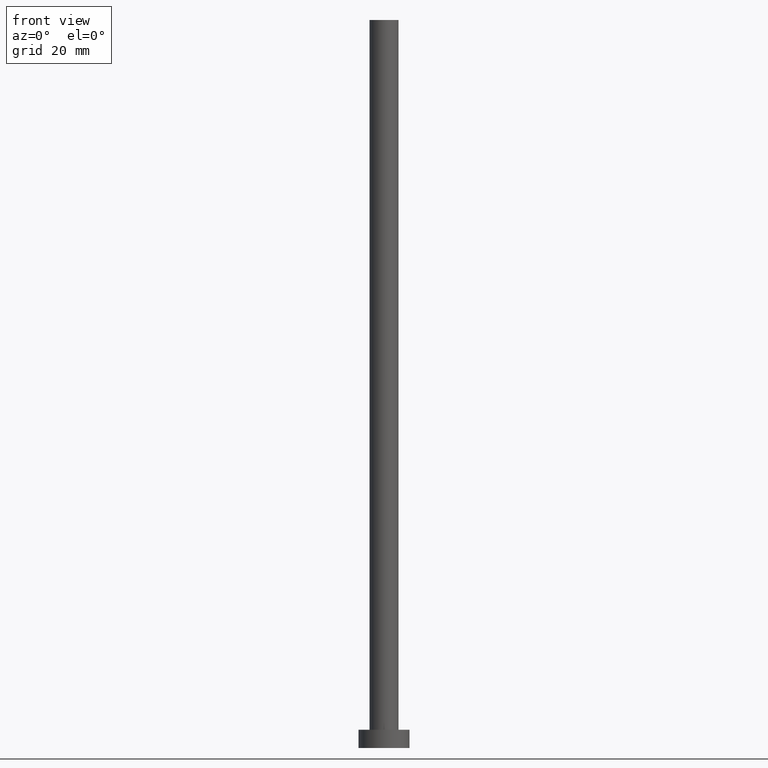
[diagram: clean part render]
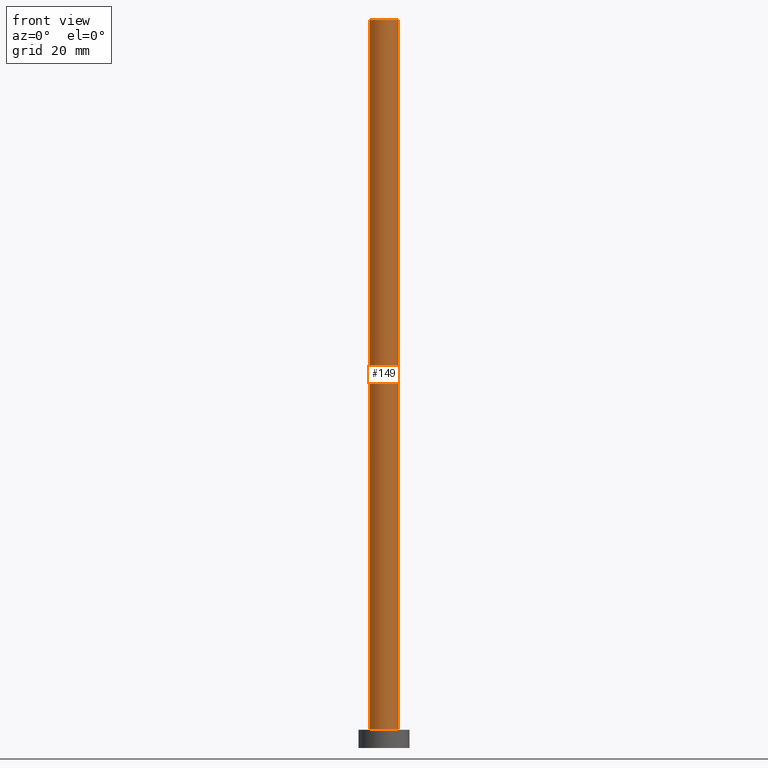
[diagram: same view with one face highlighted and labeled with its STEP entity id]
A machine part, front view. The second image highlights one B-rep face of the part: STEP entity #149.
In plain terms, the highlighted cylindrical surface (edge-blend (fillet) strip) has radius 4 mm, axis along (-0, -0, -1).
Its self-contained STEP definition (entity closure, byte-faithful):
#5 = CIRCLE ( 'NONE', #164, 4.000000000000000000 ) ;
#6 = CARTESIAN_POINT ( 'NONE',  ( 4.000000000000000000, 4.898587196589412829E-16, 5.000000000000000000 ) ) ;
#32 = EDGE_CURVE ( 'NONE', #165, #100, #215, .T. ) ;
#44 = DIRECTION ( 'NONE',  ( -0.000000000000000000, -0.000000000000000000, -1.000000000000000000 ) ) ;
#46 = CARTESIAN_POINT ( 'NONE',  ( 4.000000000000000000, 4.898587196589412829E-16, 200.0000000000000000 ) ) ;
#53 = CARTESIAN_POINT ( 'NONE',  ( 0.000000000000000000, 0.000000000000000000, 200.0000000000000000 ) ) ;
#65 = VECTOR ( 'NONE', #44, 1000.000000000000000 ) ;
#66 = EDGE_CURVE ( 'NONE', #171, #255, #141, .T. ) ;
#78 = CARTESIAN_POINT ( 'NONE',  ( -4.000000000000000000, 0.000000000000000000, 5.000000000000000000 ) ) ;
#79 = EDGE_CURVE ( 'NONE', #171, #165, #5, .T. ) ;
#100 = VERTEX_POINT ( 'NONE', #6 ) ;
#104 = DIRECTION ( 'NONE',  ( -0.000000000000000000, -0.000000000000000000, -1.000000000000000000 ) ) ;
#107 = DIRECTION ( 'NONE',  ( 0.000000000000000000, 0.000000000000000000, 1.000000000000000000 ) ) ;
#109 = CARTESIAN_POINT ( 'NONE',  ( -4.000000000000000000, 0.000000000000000000, 200.0000000000000000 ) ) ;
#114 = EDGE_CURVE ( 'NONE', #255, #100, #176, .T. ) ;
#120 = ORIENTED_EDGE ( 'NONE', *, *, #114, .T. ) ;
#139 = ORIENTED_EDGE ( 'NONE', *, *, #79, .F. ) ;
#141 = LINE ( 'NONE', #220, #65 ) ;
#142 = DIRECTION ( 'NONE',  ( 1.000000000000000000, 0.000000000000000000, 0.000000000000000000 ) ) ;
#145 = CYLINDRICAL_SURFACE ( 'NONE', #200, 4.000000000000000000 ) ;
#149 = ADVANCED_FACE ( 'NONE', ( #204 ), #145, .T. ) ;
#155 = CARTESIAN_POINT ( 'NONE',  ( 4.000000000000000000, 4.898587196589412829E-16, 200.0000000000000000 ) ) ;
#160 = CARTESIAN_POINT ( 'NONE',  ( 0.000000000000000000, 0.000000000000000000, 200.0000000000000000 ) ) ;
#164 = AXIS2_PLACEMENT_3D ( 'NONE', #53, #107, #221 ) ;
#165 = VERTEX_POINT ( 'NONE', #46 ) ;
#167 = VECTOR ( 'NONE', #222, 1000.000000000000000 ) ;
#171 = VERTEX_POINT ( 'NONE', #109 ) ;
#176 = CIRCLE ( 'NONE', #227, 4.000000000000000000 ) ;
#178 = CARTESIAN_POINT ( 'NONE',  ( 0.000000000000000000, 0.000000000000000000, 5.000000000000000000 ) ) ;
#192 = DIRECTION ( 'NONE',  ( 0.000000000000000000, 0.000000000000000000, 1.000000000000000000 ) ) ;
#200 = AXIS2_PLACEMENT_3D ( 'NONE', #160, #104, #240 ) ;
#204 = FACE_OUTER_BOUND ( 'NONE', #208, .T. ) ;
#208 = EDGE_LOOP ( 'NONE', ( #210, #139, #249, #120 ) ) ;
#210 = ORIENTED_EDGE ( 'NONE', *, *, #32, .F. ) ;
#215 = LINE ( 'NONE', #155, #167 ) ;
#220 = CARTESIAN_POINT ( 'NONE',  ( -4.000000000000000000, 0.000000000000000000, 200.0000000000000000 ) ) ;
#221 = DIRECTION ( 'NONE',  ( 1.000000000000000000, 0.000000000000000000, 0.000000000000000000 ) ) ;
#222 = DIRECTION ( 'NONE',  ( -0.000000000000000000, -0.000000000000000000, -1.000000000000000000 ) ) ;
#227 = AXIS2_PLACEMENT_3D ( 'NONE', #178, #192, #142 ) ;
#240 = DIRECTION ( 'NONE',  ( -1.000000000000000000, 0.000000000000000000, 0.000000000000000000 ) ) ;
#249 = ORIENTED_EDGE ( 'NONE', *, *, #66, .T. ) ;
#255 = VERTEX_POINT ( 'NONE', #78 ) ;